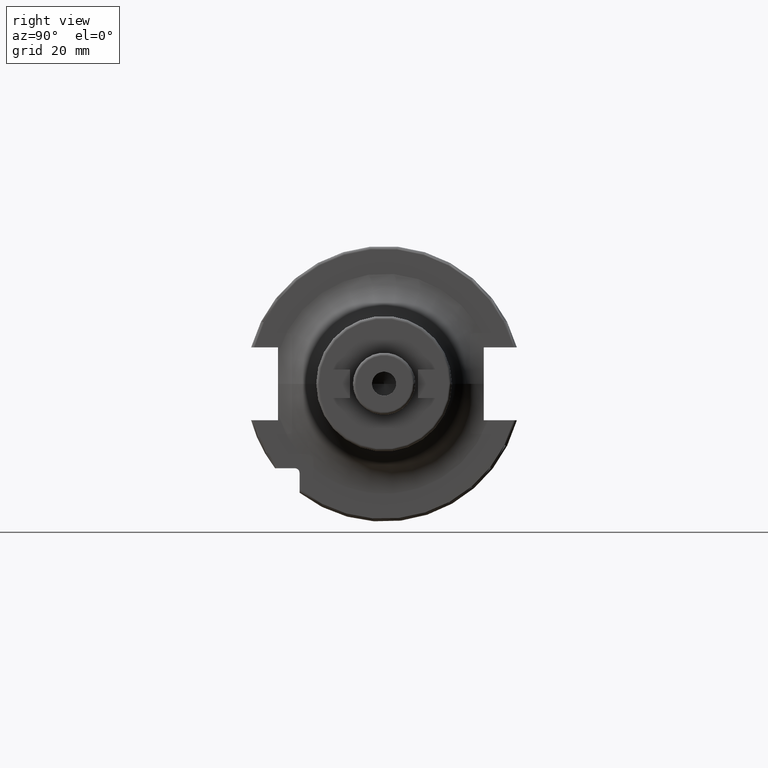
[diagram: clean part render]
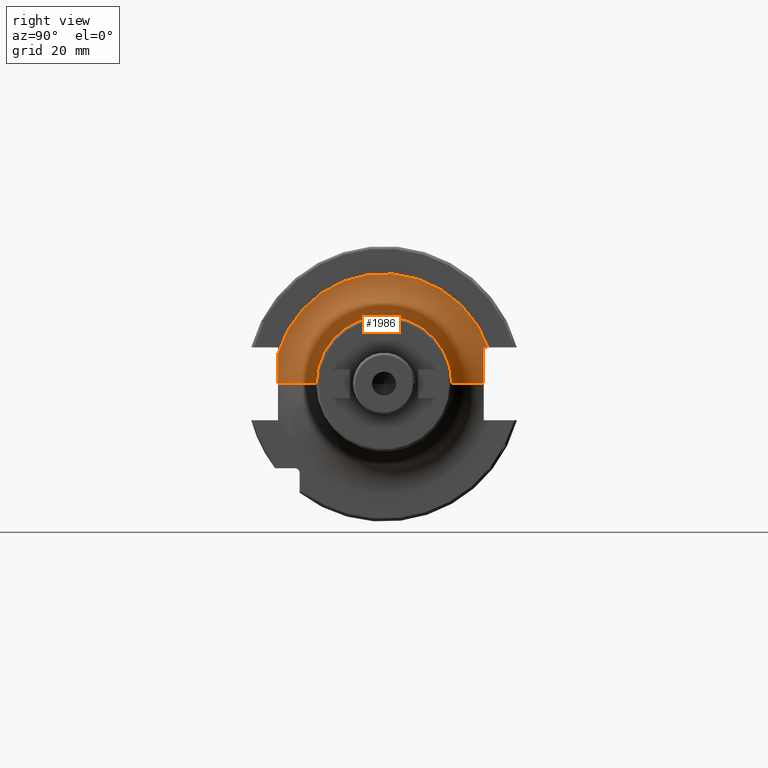
[diagram: same view with one face highlighted and labeled with its STEP entity id]
A machine part, right view. The second image highlights one B-rep face of the part: STEP entity #1986.
In plain terms, the highlighted toroidal blend (fillet) surface has major radius 39 mm and minor (blend) radius 15 mm.
Its self-contained STEP definition (entity closure, byte-faithful):
#151=CARTESIAN_POINT('',(1.905E1,0.E0,0.E0));
#152=DIRECTION('',(1.E0,0.E0,0.E0));
#153=DIRECTION('',(0.E0,9.437116839497E-1,3.307691907915E-1));
#154=AXIS2_PLACEMENT_3D('',#151,#152,#153);
#175=CARTESIAN_POINT('',(3.405E1,-3.899999993367E1,2.274509350150E-3));
#176=DIRECTION('',(0.E0,-5.832075256795E-5,-9.999999982993E-1));
#177=DIRECTION('',(-9.949874375339E-1,9.999999557830E-2,-5.832075008837E-6));
#178=AXIS2_PLACEMENT_3D('',#175,#176,#177);
#199=CARTESIAN_POINT('',(1.911705676088E1,3.53E1,1.29E1));
#200=CARTESIAN_POINT('',(1.909490310245E1,3.554860759708E1,1.29E1));
#201=CARTESIAN_POINT('',(1.906139383756E1,3.604799453237E1,1.289997608022E1));
#202=CARTESIAN_POINT('',(1.905E1,3.655175425900E1,1.290004783956E1));
#203=CARTESIAN_POINT('',(1.905E1,3.680474002471E1,1.290004783956E1));
#205=CARTESIAN_POINT('',(1.951349421474E1,3.53E1,-2.060085826012E-3));
#206=CARTESIAN_POINT('',(1.951350451918E1,3.53E1,6.916402714816E-1));
#207=CARTESIAN_POINT('',(1.950283899636E1,3.53E1,2.125680634255E0));
#208=CARTESIAN_POINT('',(1.945264997934E1,3.53E1,4.367347023302E0));
#209=CARTESIAN_POINT('',(1.936543576829E1,3.53E1,6.847560399361E0));
#210=CARTESIAN_POINT('',(1.924078954813E1,3.53E1,9.706666873772E0));
#211=CARTESIAN_POINT('',(1.915286443868E1,3.53E1,1.180041174459E1));
#212=CARTESIAN_POINT('',(1.911705676088E1,3.53E1,1.29E1));
#214=CARTESIAN_POINT('',(3.405E1,3.899999993359E1,-2.276015497923E-3));
#215=DIRECTION('',(0.E0,5.835937174162E-5,9.999999982971E-1));
#216=DIRECTION('',(-9.691003856839E-1,-2.466666622391E-1,1.439531146239E-5));
#217=AXIS2_PLACEMENT_3D('',#214,#215,#216);
#219=CARTESIAN_POINT('',(1.905E1,-3.750000890931E1,1.071200927923E1));
#220=CARTESIAN_POINT('',(1.905E1,-3.750000890931E1,9.527551376876E0));
#221=CARTESIAN_POINT('',(1.907081811564E1,-3.749999584232E1,7.155081338727E0));
#222=CARTESIAN_POINT('',(1.911306688405E1,-3.750000118791E1,3.577199508162E0));
#223=CARTESIAN_POINT('',(1.912518144943E1,-3.75E1,1.194307805180E0));
#224=CARTESIAN_POINT('',(1.912518843699E1,-3.75E1,2.187028225018E-3));
#955=CARTESIAN_POINT('',(3.405E1,0.E0,0.E0));
#956=DIRECTION('',(1.E0,0.E0,0.E0));
#957=DIRECTION('',(0.E0,1.E0,0.E0));
#958=AXIS2_PLACEMENT_3D('',#955,#956,#957);
#1612=CARTESIAN_POINT('',(3.405E1,-2.4E1,0.E0));
#1613=CARTESIAN_POINT('',(3.405E1,2.4E1,0.E0));
#1614=VERTEX_POINT('',#1612);
#1615=VERTEX_POINT('',#1613);
#1616=CARTESIAN_POINT('',(1.905E1,3.680475567404E1,1.289999844087E1));
#1617=CARTESIAN_POINT('',(1.905E1,-3.750008095392E1,1.071185924334E1));
#1618=VERTEX_POINT('',#1616);
#1619=VERTEX_POINT('',#1617);
#1678=VERTEX_POINT('',#205);
#1679=VERTEX_POINT('',#212);
#1681=VERTEX_POINT('',#224);
#1970=CARTESIAN_POINT('',(3.405E1,0.E0,0.E0));
#1971=DIRECTION('',(1.E0,0.E0,0.E0));
#1972=DIRECTION('',(0.E0,1.485959642860E-3,-9.999988959614E-1));
#1973=AXIS2_PLACEMENT_3D('',#1970,#1971,#1972);
#1974=TOROIDAL_SURFACE('',#1973,3.9E1,1.5E1);
#1975=ORIENTED_EDGE('',*,*,#1919,.F.);
#1977=ORIENTED_EDGE('',*,*,#1976,.F.);
#1978=ORIENTED_EDGE('',*,*,#1838,.F.);
#1979=ORIENTED_EDGE('',*,*,#1944,.T.);
#1981=ORIENTED_EDGE('',*,*,#1980,.T.);
#1982=ORIENTED_EDGE('',*,*,#1940,.F.);
#1983=ORIENTED_EDGE('',*,*,#1957,.F.);
#1984=EDGE_LOOP('',(#1975,#1977,#1978,#1979,#1981,#1982,#1983));
#1985=FACE_OUTER_BOUND('',#1984,.F.);
#1986=ADVANCED_FACE('',(#1985),#1974,.F.);
#155=CIRCLE('',#154,3.9E1);
#179=CIRCLE('',#178,1.5E1);
#204=B_SPLINE_CURVE_WITH_KNOTS('',3,(#199,#200,#201,#202,#203),.UNSPECIFIED.,
.F.,.F.,(4,1,4),(0.E0,5.E-1,1.E0),.UNSPECIFIED.);
#213=B_SPLINE_CURVE_WITH_KNOTS('',3,(#205,#206,#207,#208,#209,#210,#211,#212),
.UNSPECIFIED.,.F.,.F.,(4,1,1,1,1,4),(0.E0,2.E-1,4.E-1,6.E-1,8.E-1,1.E0),
.UNSPECIFIED.);
#218=CIRCLE('',#217,1.5E1);
#225=B_SPLINE_CURVE_WITH_KNOTS('',3,(#219,#220,#221,#222,#223,#224),
.UNSPECIFIED.,.F.,.F.,(4,1,1,4),(0.E0,3.333333333333E-1,6.666666666667E-1,1.E0),
.UNSPECIFIED.);
#959=CIRCLE('',#958,2.4E1);
#1838=EDGE_CURVE('',#1678,#1679,#213,.T.);
#1919=EDGE_CURVE('',#1618,#1619,#155,.T.);
#1940=EDGE_CURVE('',#1681,#1614,#179,.T.);
#1944=EDGE_CURVE('',#1678,#1615,#218,.T.);
#1957=EDGE_CURVE('',#1619,#1681,#225,.T.);
#1976=EDGE_CURVE('',#1679,#1618,#204,.T.);
#1980=EDGE_CURVE('',#1615,#1614,#959,.T.);